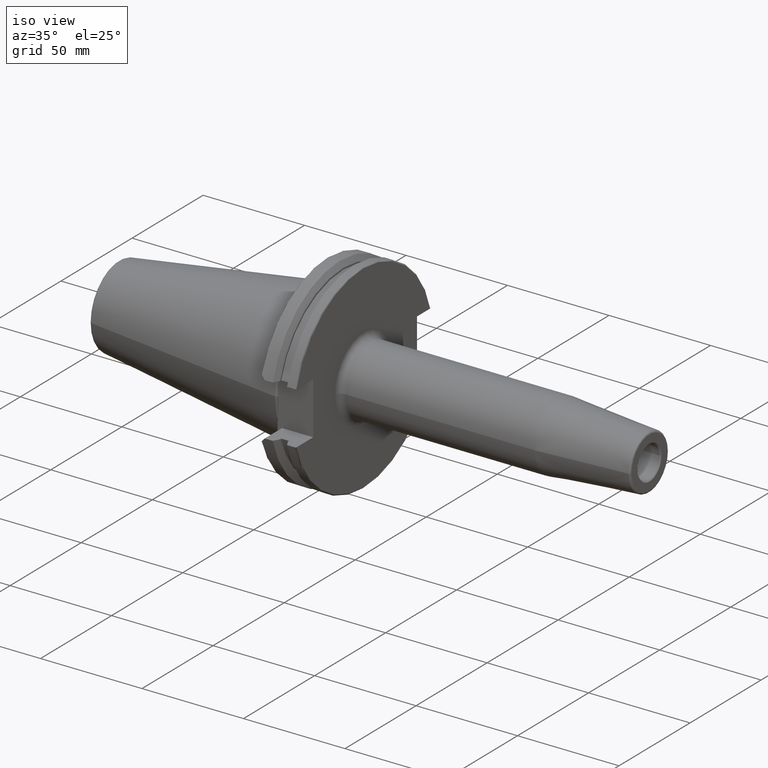
[diagram: clean part render]
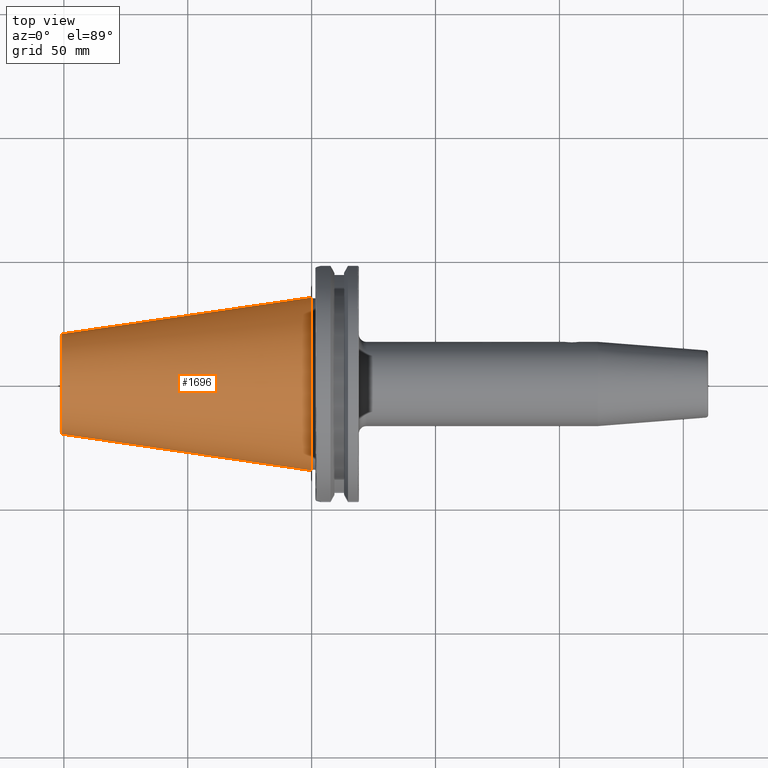
[diagram: tour spotlight — one face highlighted and labeled with its STEP entity id]
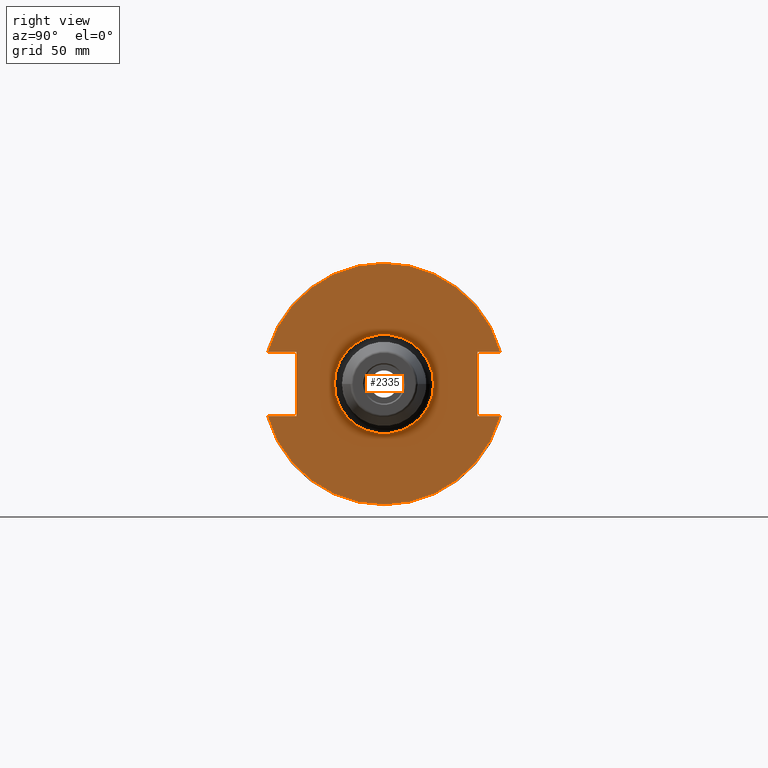
[diagram: tour spotlight — one face highlighted and labeled with its STEP entity id]
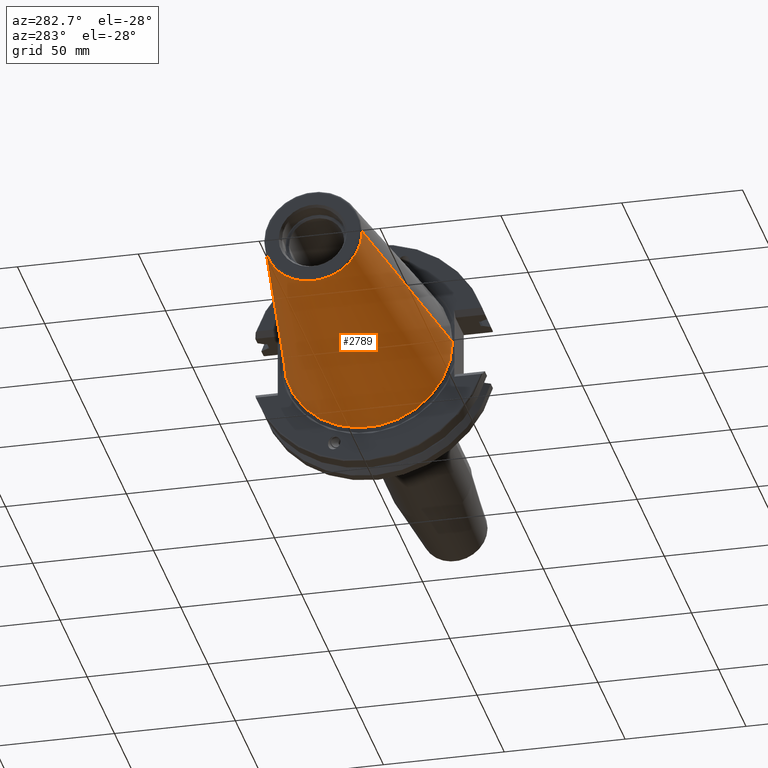
[diagram: tour spotlight — one face highlighted and labeled with its STEP entity id]
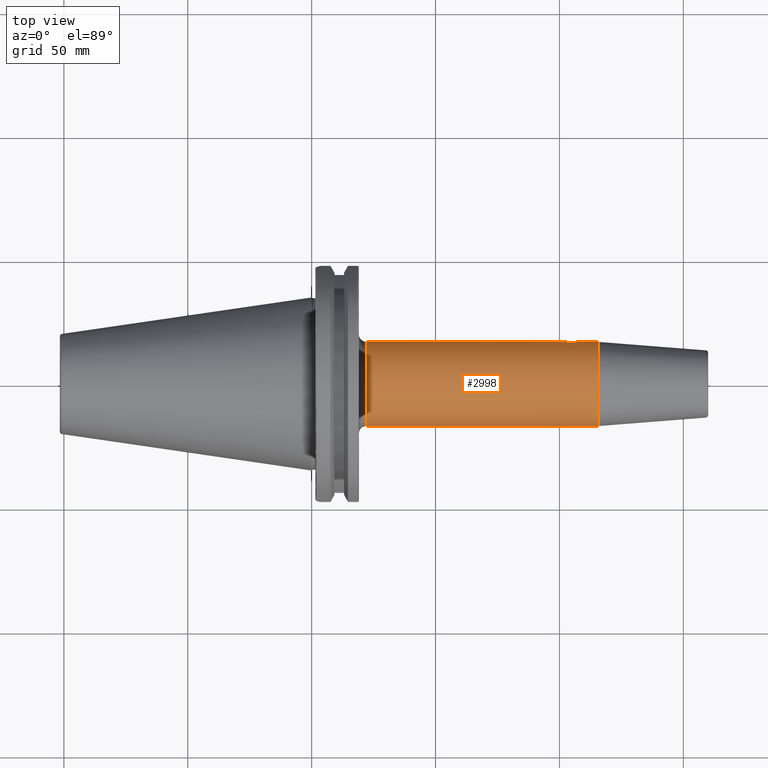
[diagram: tour spotlight — one face highlighted and labeled with its STEP entity id]
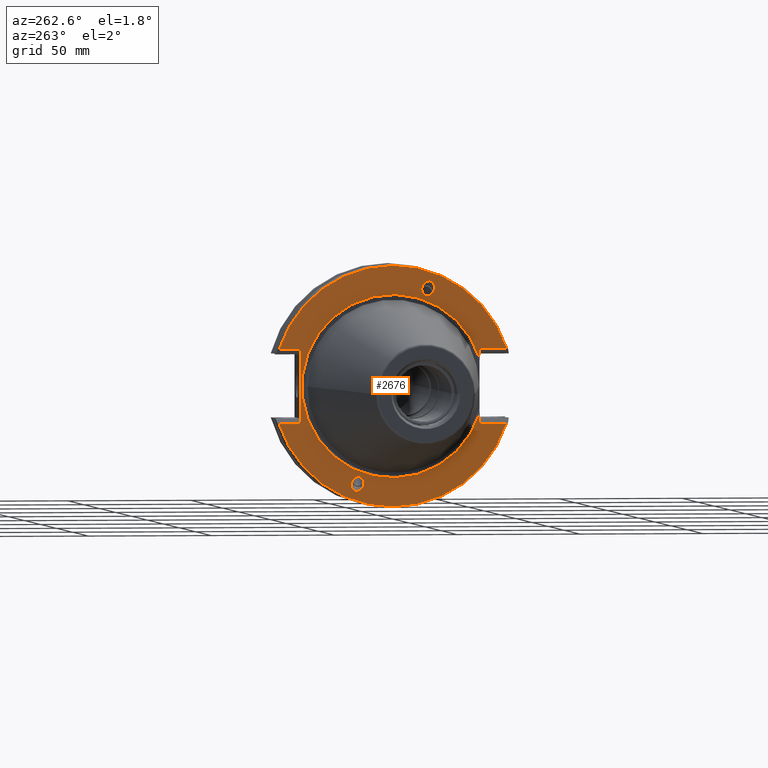
[diagram: tour spotlight — one face highlighted and labeled with its STEP entity id]
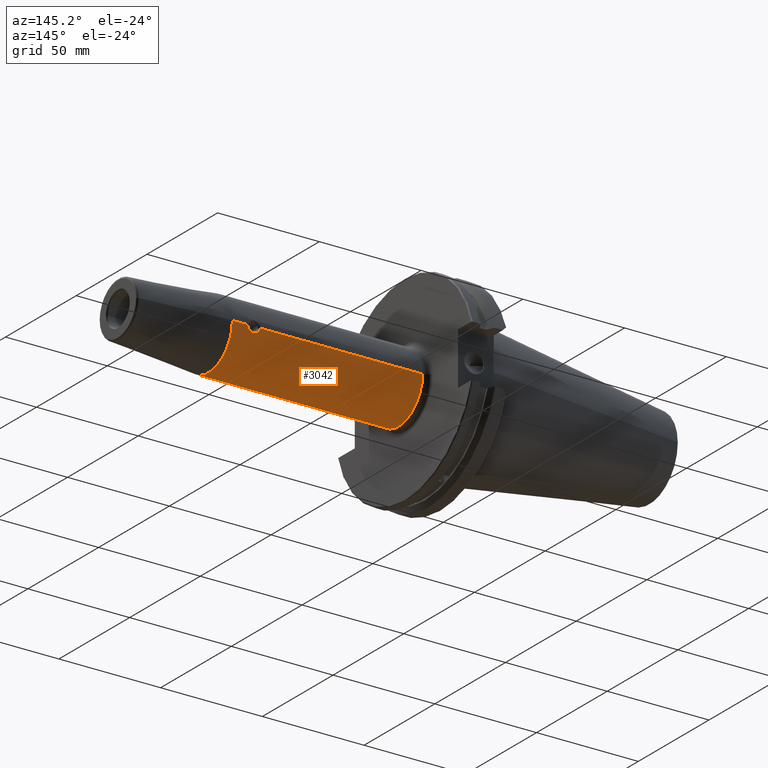
[diagram: tour spotlight — one face highlighted and labeled with its STEP entity id]
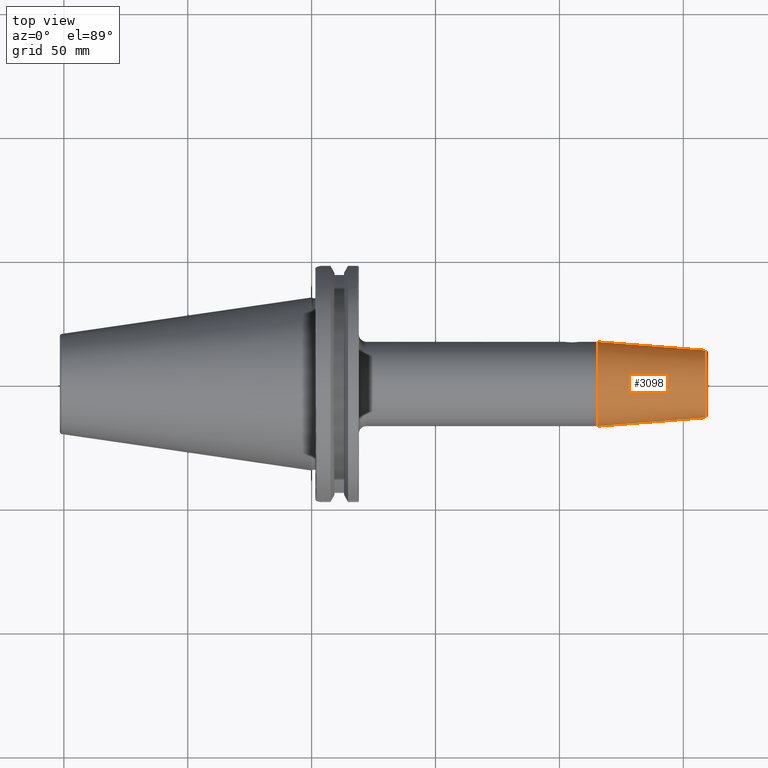
[diagram: tour spotlight — one face highlighted and labeled with its STEP entity id]
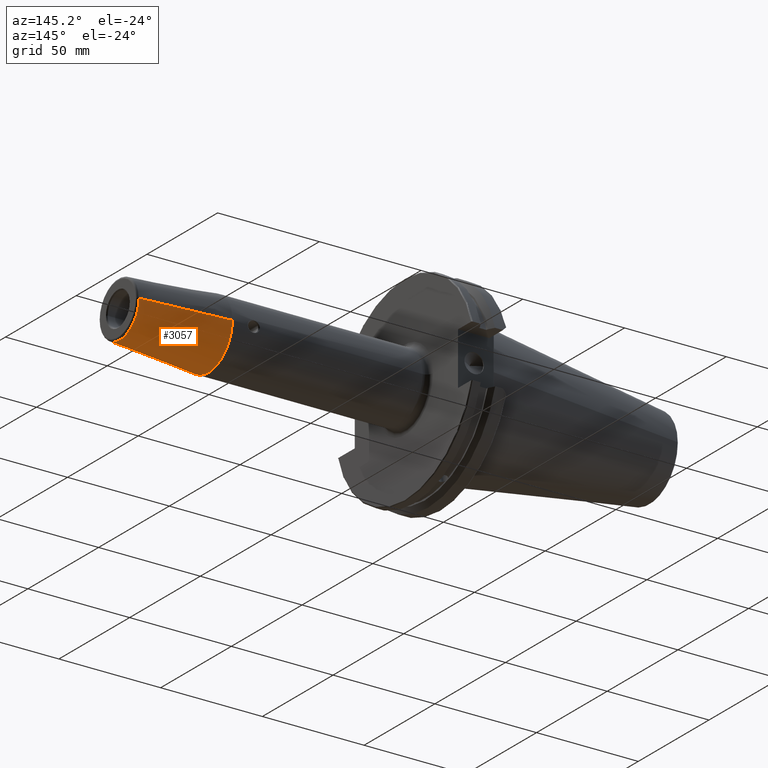
[diagram: tour spotlight — one face highlighted and labeled with its STEP entity id]
A machine part: a face-by-face anatomy tour. The part has 132 B-rep faces; the first image is the clean iso view, then the 8 largest visible faces are spotlighted one at a time (largest first), each with its STEP entity span.

Face 1 — top view, entity #1696. In plain terms, the highlighted conical surface has half-angle 8.297 deg.
Definition (entity closure, byte-faithful):
#2=CARTESIAN_POINT('',(-1.007443068839E2,0.E0,0.E0));
#3=DIRECTION('',(-1.E0,0.E0,0.E0));
#4=DIRECTION('',(0.E0,-1.E0,0.E0));
#5=AXIS2_PLACEMENT_3D('',#2,#3,#4);
#7=CARTESIAN_POINT('',(-5.684341886081E-14,0.E0,0.E0));
#8=DIRECTION('',(1.E0,0.E0,0.E0));
#9=DIRECTION('',(0.E0,1.E0,0.E0));
#10=AXIS2_PLACEMENT_3D('',#7,#8,#9);
#986=DIRECTION('',(-9.895329823977E-1,1.443068839211E-1,-1.858265596567E-14));
#987=VECTOR('',#986,1.018099534589E2);
#988=CARTESIAN_POINT('',(0.E0,-3.4925E1,0.E0));
#989=LINE('',#988,#987);
#995=DIRECTION('',(-9.895329823977E-1,-1.443068839211E-1,1.855830584851E-14));
#996=VECTOR('',#995,1.018099534589E2);
#997=CARTESIAN_POINT('',(0.E0,3.4925E1,0.E0));
#998=LINE('',#997,#996);
#1494=CARTESIAN_POINT('',(-5.684341886081E-14,3.4925E1,0.E0));
#1495=CARTESIAN_POINT('',(-5.684341886081E-14,-3.4925E1,0.E0));
#1496=VERTEX_POINT('',#1494);
#1497=VERTEX_POINT('',#1495);
#1556=CARTESIAN_POINT('',(-1.007443068839E2,-2.023312286420E1,0.E0));
#1557=CARTESIAN_POINT('',(-1.007443068839E2,2.023312286420E1,0.E0));
#1558=VERTEX_POINT('',#1556);
#1559=VERTEX_POINT('',#1557);
#1681=CARTESIAN_POINT('',(-5.037215344196E1,0.E0,0.E0));
#1682=DIRECTION('',(1.E0,0.E0,0.E0));
#1683=DIRECTION('',(0.E0,-1.E0,0.E0));
#1684=AXIS2_PLACEMENT_3D('',#1681,#1682,#1683);
#1685=CONICAL_SURFACE('',#1684,2.757906143210E1,8.29714444E0);
#1687=ORIENTED_EDGE('',*,*,#1686,.T.);
#1689=ORIENTED_EDGE('',*,*,#1688,.F.);
#1691=ORIENTED_EDGE('',*,*,#1690,.T.);
#1693=ORIENTED_EDGE('',*,*,#1692,.T.);
#1694=EDGE_LOOP('',(#1687,#1689,#1691,#1693));
#1695=FACE_OUTER_BOUND('',#1694,.F.);
#1696=ADVANCED_FACE('',(#1695),#1685,.T.);
#6=CIRCLE('',#5,2.023312286420E1);
#11=CIRCLE('',#10,3.4925E1);
#1686=EDGE_CURVE('',#1558,#1559,#6,.T.);
#1688=EDGE_CURVE('',#1496,#1559,#998,.T.);
#1690=EDGE_CURVE('',#1496,#1497,#11,.T.);
#1692=EDGE_CURVE('',#1497,#1558,#989,.T.);

Face 2 — right view, entity #2335. In plain terms, the highlighted planar face has unit normal (1, 0, 0).
Definition (entity closure, byte-faithful):
#393=CARTESIAN_POINT('',(1.905E1,-4.695961196869E1,1.295E1));
#410=CARTESIAN_POINT('',(1.905E1,0.E0,0.E0));
#411=DIRECTION('',(1.E0,0.E0,0.E0));
#412=DIRECTION('',(0.E0,9.640156421594E-1,2.658455221966E-1));
#413=AXIS2_PLACEMENT_3D('',#410,#411,#412);
#472=CARTESIAN_POINT('',(1.905E1,0.E0,0.E0));
#473=DIRECTION('',(1.E0,0.E0,0.E0));
#474=DIRECTION('',(0.E0,-9.640156421594E-1,-2.658455221966E-1));
#475=AXIS2_PLACEMENT_3D('',#472,#473,#474);
#483=CARTESIAN_POINT('',(1.905E1,-4.695961196869E1,-1.295E1));
#537=CARTESIAN_POINT('',(1.905E1,4.695961196869E1,-1.295E1));
#549=DIRECTION('',(0.E0,1.E0,0.E0));
#550=VECTOR('',#549,1.165361196869E1);
#551=CARTESIAN_POINT('',(1.905E1,-4.695961196869E1,-1.295E1));
#552=LINE('',#551,#550);
#553=DIRECTION('',(0.E0,0.E0,1.E0));
#554=VECTOR('',#553,2.59E1);
#555=CARTESIAN_POINT('',(1.905E1,-3.5306E1,-1.295E1));
#556=LINE('',#555,#554);
#557=DIRECTION('',(0.E0,1.E0,0.E0));
#558=VECTOR('',#557,1.165361196869E1);
#559=CARTESIAN_POINT('',(1.905E1,-4.695961196869E1,1.295E1));
#560=LINE('',#559,#558);
#561=DIRECTION('',(0.E0,-1.E0,0.E0));
#562=VECTOR('',#561,9.240611968691E0);
#563=CARTESIAN_POINT('',(1.905E1,4.695961196869E1,1.295E1));
#564=LINE('',#563,#562);
#565=DIRECTION('',(0.E0,0.E0,-1.E0));
#566=VECTOR('',#565,2.59E1);
#567=CARTESIAN_POINT('',(1.905E1,3.7719E1,1.295E1));
#568=LINE('',#567,#566);
#569=DIRECTION('',(0.E0,-1.E0,0.E0));
#570=VECTOR('',#569,9.240611968691E0);
#571=CARTESIAN_POINT('',(1.905E1,4.695961196869E1,-1.295E1));
#572=LINE('',#571,#570);
#573=CARTESIAN_POINT('',(1.905E1,0.E0,0.E0));
#574=DIRECTION('',(1.E0,0.E0,0.E0));
#575=DIRECTION('',(0.E0,-1.E0,0.E0));
#576=AXIS2_PLACEMENT_3D('',#573,#574,#575);
#578=CARTESIAN_POINT('',(1.905E1,0.E0,0.E0));
#579=DIRECTION('',(1.E0,0.E0,0.E0));
#580=DIRECTION('',(0.E0,1.E0,0.E0));
#581=AXIS2_PLACEMENT_3D('',#578,#579,#580);
#689=CARTESIAN_POINT('',(1.905E1,4.695961196869E1,1.295E1));
#1403=CARTESIAN_POINT('',(1.905E1,3.7719E1,1.295E1));
#1404=CARTESIAN_POINT('',(1.905E1,3.7719E1,-1.295E1));
#1405=VERTEX_POINT('',#1403);
#1406=VERTEX_POINT('',#1404);
#1426=CARTESIAN_POINT('',(1.905E1,-3.5306E1,-1.295E1));
#1427=CARTESIAN_POINT('',(1.905E1,-3.5306E1,1.295E1));
#1428=VERTEX_POINT('',#1426);
#1429=VERTEX_POINT('',#1427);
#1537=VERTEX_POINT('',#483);
#1538=VERTEX_POINT('',#537);
#1549=VERTEX_POINT('',#689);
#1550=VERTEX_POINT('',#393);
#1617=CARTESIAN_POINT('',(1.905E1,-2.E1,-2.266215559059E-14));
#1618=CARTESIAN_POINT('',(1.905E1,2.E1,1.133107779530E-14));
#1619=VERTEX_POINT('',#1617);
#1620=VERTEX_POINT('',#1618);
#2311=CARTESIAN_POINT('',(1.905E1,0.E0,0.E0));
#2312=DIRECTION('',(1.E0,0.E0,0.E0));
#2313=DIRECTION('',(0.E0,-1.E0,0.E0));
#2314=AXIS2_PLACEMENT_3D('',#2311,#2312,#2313);
#2315=PLANE('',#2314);
#2316=ORIENTED_EDGE('',*,*,#2225,.F.);
#2317=ORIENTED_EDGE('',*,*,#2253,.T.);
#2319=ORIENTED_EDGE('',*,*,#2318,.T.);
#2320=ORIENTED_EDGE('',*,*,#2111,.F.);
#2321=ORIENTED_EDGE('',*,*,#2142,.F.);
#2323=ORIENTED_EDGE('',*,*,#2322,.T.);
#2325=ORIENTED_EDGE('',*,*,#2324,.T.);
#2326=ORIENTED_EDGE('',*,*,#2292,.F.);
#2327=EDGE_LOOP('',(#2316,#2317,#2319,#2320,#2321,#2323,#2325,#2326));
#2328=FACE_OUTER_BOUND('',#2327,.F.);
#2330=ORIENTED_EDGE('',*,*,#2329,.T.);
#2332=ORIENTED_EDGE('',*,*,#2331,.T.);
#2333=EDGE_LOOP('',(#2330,#2332));
#2334=FACE_BOUND('',#2333,.F.);
#2335=ADVANCED_FACE('',(#2328,#2334),#2315,.T.);
#414=CIRCLE('',#413,4.87125E1);
#476=CIRCLE('',#475,4.87125E1);
#577=CIRCLE('',#576,2.E1);
#582=CIRCLE('',#581,2.E1);
#2111=EDGE_CURVE('',#1550,#1429,#560,.T.);
#2142=EDGE_CURVE('',#1549,#1550,#414,.T.);
#2225=EDGE_CURVE('',#1537,#1538,#476,.T.);
#2253=EDGE_CURVE('',#1537,#1428,#552,.T.);
#2292=EDGE_CURVE('',#1538,#1406,#572,.T.);
#2318=EDGE_CURVE('',#1428,#1429,#556,.T.);
#2322=EDGE_CURVE('',#1549,#1405,#564,.T.);
#2324=EDGE_CURVE('',#1405,#1406,#568,.T.);
#2329=EDGE_CURVE('',#1619,#1620,#577,.T.);
#2331=EDGE_CURVE('',#1620,#1619,#582,.T.);

Face 3 — auxiliary view, entity #2789. In plain terms, the highlighted conical surface has half-angle 8.297 deg.
Definition (entity closure, byte-faithful):
#981=CARTESIAN_POINT('',(-1.007443068839E2,0.E0,0.E0));
#982=DIRECTION('',(-1.E0,0.E0,0.E0));
#983=DIRECTION('',(0.E0,1.E0,0.E0));
#984=AXIS2_PLACEMENT_3D('',#981,#982,#983);
#986=DIRECTION('',(-9.895329823977E-1,1.443068839211E-1,-1.858265596567E-14));
#987=VECTOR('',#986,1.018099534589E2);
#988=CARTESIAN_POINT('',(0.E0,-3.4925E1,0.E0));
#989=LINE('',#988,#987);
#990=CARTESIAN_POINT('',(-5.684341886081E-14,0.E0,0.E0));
#991=DIRECTION('',(1.E0,0.E0,0.E0));
#992=DIRECTION('',(0.E0,-1.E0,0.E0));
#993=AXIS2_PLACEMENT_3D('',#990,#991,#992);
#995=DIRECTION('',(-9.895329823977E-1,-1.443068839211E-1,1.855830584851E-14));
#996=VECTOR('',#995,1.018099534589E2);
#997=CARTESIAN_POINT('',(0.E0,3.4925E1,0.E0));
#998=LINE('',#997,#996);
#1494=CARTESIAN_POINT('',(-5.684341886081E-14,3.4925E1,0.E0));
#1495=CARTESIAN_POINT('',(-5.684341886081E-14,-3.4925E1,0.E0));
#1496=VERTEX_POINT('',#1494);
#1497=VERTEX_POINT('',#1495);
#1556=CARTESIAN_POINT('',(-1.007443068839E2,-2.023312286420E1,0.E0));
#1557=CARTESIAN_POINT('',(-1.007443068839E2,2.023312286420E1,0.E0));
#1558=VERTEX_POINT('',#1556);
#1559=VERTEX_POINT('',#1557);
#2777=CARTESIAN_POINT('',(-5.037215344196E1,0.E0,0.E0));
#2778=DIRECTION('',(1.E0,0.E0,0.E0));
#2779=DIRECTION('',(0.E0,-1.E0,0.E0));
#2780=AXIS2_PLACEMENT_3D('',#2777,#2778,#2779);
#2781=CONICAL_SURFACE('',#2780,2.757906143210E1,8.29714444E0);
#2783=ORIENTED_EDGE('',*,*,#2782,.T.);
#2784=ORIENTED_EDGE('',*,*,#1692,.F.);
#2785=ORIENTED_EDGE('',*,*,#2767,.T.);
#2786=ORIENTED_EDGE('',*,*,#1688,.T.);
#2787=EDGE_LOOP('',(#2783,#2784,#2785,#2786));
#2788=FACE_OUTER_BOUND('',#2787,.F.);
#2789=ADVANCED_FACE('',(#2788),#2781,.T.);
#985=CIRCLE('',#984,2.023312286420E1);
#994=CIRCLE('',#993,3.4925E1);
#1688=EDGE_CURVE('',#1496,#1559,#998,.T.);
#1692=EDGE_CURVE('',#1497,#1558,#989,.T.);
#2767=EDGE_CURVE('',#1497,#1496,#994,.T.);
#2782=EDGE_CURVE('',#1559,#1558,#985,.T.);

Face 4 — top view, entity #2998. In plain terms, the highlighted cylindrical surface (partial cylindrical patch) has radius 17 mm, axis along (1, 0, 0).
Definition (entity closure, byte-faithful):
#1096=CARTESIAN_POINT('',(1.08E2,1.7E1,0.E0));
#1097=CARTESIAN_POINT('',(1.08E2,1.7E1,2.850482626653E-1));
#1098=CARTESIAN_POINT('',(1.079093340495E2,1.698608884534E1,8.310653203653E-1));
#1099=CARTESIAN_POINT('',(1.074988223454E2,1.692858404292E1,1.612132521097E0));
#1100=CARTESIAN_POINT('',(1.068401316183E2,1.685378474800E1,2.246289278647E0));
#1101=CARTESIAN_POINT('',(1.059793838090E2,1.678950842158E1,2.671828464848E0));
#1102=CARTESIAN_POINT('',(1.050029373905E2,1.676396127665E1,2.822101341521E0));
#1103=CARTESIAN_POINT('',(1.040291541766E2,1.678910908376E1,2.674216409574E0));
#1104=CARTESIAN_POINT('',(1.031668756960E2,1.685308656489E1,2.251413069835E0));
#1105=CARTESIAN_POINT('',(1.025049181779E2,1.692808879280E1,1.617322849884E0));
#1106=CARTESIAN_POINT('',(1.020920136005E2,1.698588375944E1,8.358791306053E-1));
#1107=CARTESIAN_POINT('',(1.02E2,1.7E1,2.869636948310E-1));
#1108=CARTESIAN_POINT('',(1.02E2,1.7E1,0.E0));
#1110=CARTESIAN_POINT('',(1.1553E2,0.E0,0.E0));
#1111=DIRECTION('',(1.E0,0.E0,0.E0));
#1112=DIRECTION('',(0.E0,1.E0,0.E0));
#1113=AXIS2_PLACEMENT_3D('',#1110,#1111,#1112);
#1115=CARTESIAN_POINT('',(2.205E1,0.E0,0.E0));
#1116=DIRECTION('',(1.E0,0.E0,0.E0));
#1117=DIRECTION('',(0.E0,1.E0,0.E0));
#1118=AXIS2_PLACEMENT_3D('',#1115,#1116,#1117);
#1152=DIRECTION('',(-1.E0,0.E0,1.213478955978E-11));
#1153=VECTOR('',#1152,7.995E1);
#1154=CARTESIAN_POINT('',(1.02E2,1.7E1,0.E0));
#1155=LINE('',#1154,#1153);
#1161=DIRECTION('',(-1.E0,0.E0,-1.037847458805E-11));
#1162=VECTOR('',#1161,9.348E1);
#1163=CARTESIAN_POINT('',(1.1553E2,-1.7E1,0.E0));
#1164=LINE('',#1163,#1162);
#1170=DIRECTION('',(-1.E0,0.E0,0.E0));
#1171=VECTOR('',#1170,7.53E0);
#1172=CARTESIAN_POINT('',(1.1553E2,1.7E1,0.E0));
#1173=LINE('',#1172,#1171);
#1609=CARTESIAN_POINT('',(1.1553E2,1.7E1,0.E0));
#1610=CARTESIAN_POINT('',(1.1553E2,-1.7E1,0.E0));
#1611=VERTEX_POINT('',#1609);
#1612=VERTEX_POINT('',#1610);
#1621=CARTESIAN_POINT('',(2.205E1,-1.7E1,0.E0));
#1622=CARTESIAN_POINT('',(2.205E1,1.7E1,0.E0));
#1623=VERTEX_POINT('',#1621);
#1624=VERTEX_POINT('',#1622);
#1679=VERTEX_POINT('',#1096);
#1680=VERTEX_POINT('',#1108);
#2980=CARTESIAN_POINT('',(1.20025E1,0.E0,0.E0));
#2981=DIRECTION('',(1.E0,0.E0,0.E0));
#2982=DIRECTION('',(0.E0,-1.E0,0.E0));
#2983=AXIS2_PLACEMENT_3D('',#2980,#2981,#2982);
#2984=CYLINDRICAL_SURFACE('',#2983,1.7E1);
#2986=ORIENTED_EDGE('',*,*,#2985,.F.);
#2988=ORIENTED_EDGE('',*,*,#2987,.F.);
#2990=ORIENTED_EDGE('',*,*,#2989,.T.);
#2992=ORIENTED_EDGE('',*,*,#2991,.T.);
#2993=ORIENTED_EDGE('',*,*,#2974,.F.);
#2995=ORIENTED_EDGE('',*,*,#2994,.F.);
#2996=EDGE_LOOP('',(#2986,#2988,#2990,#2992,#2993,#2995));
#2997=FACE_OUTER_BOUND('',#2996,.F.);
#2998=ADVANCED_FACE('',(#2997),#2984,.T.);
#1109=B_SPLINE_CURVE_WITH_KNOTS('',3,(#1096,#1097,#1098,#1099,#1100,#1101,#1102,
#1103,#1104,#1105,#1106,#1107,#1108),.UNSPECIFIED.,.F.,.F.,(4,1,1,1,1,1,1,1,1,1,
4),(0.E0,1.E-1,2.E-1,3.E-1,4.E-1,5.E-1,6.E-1,7.E-1,8.E-1,9.E-1,1.E0),
.UNSPECIFIED.);
#1114=CIRCLE('',#1113,1.7E1);
#1119=CIRCLE('',#1118,1.7E1);
#2974=EDGE_CURVE('',#1624,#1623,#1119,.T.);
#2985=EDGE_CURVE('',#1679,#1680,#1109,.T.);
#2987=EDGE_CURVE('',#1611,#1679,#1173,.T.);
#2989=EDGE_CURVE('',#1611,#1612,#1114,.T.);
#2991=EDGE_CURVE('',#1612,#1623,#1164,.T.);
#2994=EDGE_CURVE('',#1680,#1624,#1155,.T.);

Face 5 — auxiliary view, entity #2676. In plain terms, the highlighted planar face has unit normal (1, 0, 0).
Definition (entity closure, byte-faithful):
#587=DIRECTION('',(0.E0,0.E0,1.E0));
#588=VECTOR('',#587,4.082644218243E0);
#589=CARTESIAN_POINT('',(1.5E0,-3.5306E1,-1.515E1));
#590=LINE('',#589,#588);
#591=DIRECTION('',(0.E0,0.E0,1.E0));
#592=VECTOR('',#591,4.082644218243E0);
#593=CARTESIAN_POINT('',(1.5E0,-3.5306E1,1.106735578176E1));
#594=LINE('',#593,#592);
#599=CARTESIAN_POINT('',(1.5E0,-4.629670783382E1,-1.515E1));
#617=CARTESIAN_POINT('',(1.5E0,0.E0,0.E0));
#618=DIRECTION('',(-1.E0,0.E0,0.E0));
#619=DIRECTION('',(0.E0,9.504071405454E-1,-3.110084680523E-1));
#620=AXIS2_PLACEMENT_3D('',#617,#618,#619);
#629=CARTESIAN_POINT('',(1.5E0,4.629670783382E1,-1.515E1));
#649=DIRECTION('',(0.E0,0.E0,-1.E0));
#650=VECTOR('',#649,3.03E1);
#651=CARTESIAN_POINT('',(1.5E0,3.7719E1,1.515E1));
#652=LINE('',#651,#650);
#797=CARTESIAN_POINT('',(1.5E0,4.629670783382E1,1.515E1));
#815=CARTESIAN_POINT('',(1.5E0,0.E0,0.E0));
#816=DIRECTION('',(-1.E0,0.E0,0.E0));
#817=DIRECTION('',(0.E0,-9.504071405454E-1,3.110084680523E-1));
#818=AXIS2_PLACEMENT_3D('',#815,#816,#817);
#827=CARTESIAN_POINT('',(1.5E0,-4.629670783382E1,1.515E1));
#833=DIRECTION('',(0.E0,1.E0,0.E0));
#834=VECTOR('',#833,8.577707833819E0);
#835=CARTESIAN_POINT('',(1.5E0,3.7719E1,-1.515E1));
#836=LINE('',#835,#834);
#837=DIRECTION('',(0.E0,-1.E0,0.E0));
#838=VECTOR('',#837,8.577707833819E0);
#839=CARTESIAN_POINT('',(1.5E0,4.629670783382E1,1.515E1));
#840=LINE('',#839,#838);
#841=DIRECTION('',(0.E0,-1.E0,0.E0));
#842=VECTOR('',#841,1.099070783382E1);
#843=CARTESIAN_POINT('',(1.5E0,-3.5306E1,1.515E1));
#844=LINE('',#843,#842);
#845=DIRECTION('',(0.E0,1.E0,0.E0));
#846=VECTOR('',#845,1.099070783382E1);
#847=CARTESIAN_POINT('',(1.5E0,-4.629670783382E1,-1.515E1));
#848=LINE('',#847,#846);
#849=CARTESIAN_POINT('',(1.5E0,1.469393811491E1,-4.245972425107E1));
#850=CARTESIAN_POINT('',(1.5E0,1.499440431050E1,-4.245972425107E1));
#851=CARTESIAN_POINT('',(1.5E0,1.562938619636E1,-4.233131572402E1));
#852=CARTESIAN_POINT('',(1.5E0,1.646136743110E1,-4.164844651610E1));
#853=CARTESIAN_POINT('',(1.5E0,1.692722275148E1,-4.057411017513E1));
#854=CARTESIAN_POINT('',(1.5E0,1.696883601514E1,-3.946709007301E1));
#855=CARTESIAN_POINT('',(1.5E0,1.668375058402E1,-3.836006997088E1));
#856=CARTESIAN_POINT('',(1.5E0,1.598161139037E1,-3.728573362992E1));
#857=CARTESIAN_POINT('',(1.5E0,1.499944350064E1,-3.660286442200E1));
#858=CARTESIAN_POINT('',(1.5E0,1.433622012003E1,-3.647445589495E1));
#859=CARTESIAN_POINT('',(1.5E0,1.403575392444E1,-3.647445589495E1));
#861=CARTESIAN_POINT('',(1.5E0,1.403575392444E1,-3.647445589495E1));
#862=CARTESIAN_POINT('',(1.5E0,1.373528772886E1,-3.647445589495E1));
#863=CARTESIAN_POINT('',(1.5E0,1.310030584299E1,-3.660286442200E1));
#864=CARTESIAN_POINT('',(1.5E0,1.226832460826E1,-3.728573362992E1));
#865=CARTESIAN_POINT('',(1.5E0,1.180246928787E1,-3.836006997088E1));
#866=CARTESIAN_POINT('',(1.5E0,1.176085602421E1,-3.946709007301E1));
#867=CARTESIAN_POINT('',(1.5E0,1.204594145533E1,-4.057411017513E1));
#868=CARTESIAN_POINT('',(1.5E0,1.274808064899E1,-4.164844651610E1));
#869=CARTESIAN_POINT('',(1.5E0,1.373024853871E1,-4.233131572402E1));
#870=CARTESIAN_POINT('',(1.5E0,1.439347191933E1,-4.245972425107E1));
#871=CARTESIAN_POINT('',(1.5E0,1.469393811491E1,-4.245972425107E1));
#873=CARTESIAN_POINT('',(1.5E0,-1.603637501883E1,4.197111717666E1));
#874=CARTESIAN_POINT('',(1.5E0,-1.580620455935E1,4.216425312431E1));
#875=CARTESIAN_POINT('',(1.5E0,-1.523724080404E1,4.247404497433E1));
#876=CARTESIAN_POINT('',(1.5E0,-1.416096633651E1,4.248572404140E1));
#877=CARTESIAN_POINT('',(1.5E0,-1.311353036842E1,4.196218068521E1));
#878=CARTESIAN_POINT('',(1.5E0,-1.237007395372E1,4.114090257784E1));
#879=CARTESIAN_POINT('',(1.5E0,-1.187688325872E1,4.010962659736E1));
#880=CARTESIAN_POINT('',(1.5E0,-1.172418299771E1,3.883531083937E1));
#881=CARTESIAN_POINT('',(1.5E0,-1.203762738595E1,3.768087732712E1));
#882=CARTESIAN_POINT('',(1.5E0,-1.246314656105E1,3.715619891701E1));
#883=CARTESIAN_POINT('',(1.5E0,-1.269331702053E1,3.696306296936E1));
#885=CARTESIAN_POINT('',(1.5E0,-1.269331702053E1,3.696306296936E1));
#886=CARTESIAN_POINT('',(1.5E0,-1.292348748E1,3.676992702170E1));
#887=CARTESIAN_POINT('',(1.5E0,-1.349245123531E1,3.646013517169E1));
#888=CARTESIAN_POINT('',(1.5E0,-1.456872570285E1,3.644845610461E1));
#889=CARTESIAN_POINT('',(1.5E0,-1.561616167094E1,3.697199946080E1));
#890=CARTESIAN_POINT('',(1.5E0,-1.635961808564E1,3.779327756818E1));
#891=CARTESIAN_POINT('',(1.5E0,-1.685280878064E1,3.882455354866E1));
#892=CARTESIAN_POINT('',(1.5E0,-1.700550904165E1,4.009886930665E1));
#893=CARTESIAN_POINT('',(1.5E0,-1.669206465340E1,4.125330281890E1));
#894=CARTESIAN_POINT('',(1.5E0,-1.626654547830E1,4.177798122901E1));
#895=CARTESIAN_POINT('',(1.5E0,-1.603637501883E1,4.197111717666E1));
#907=CARTESIAN_POINT('',(1.5E0,-3.5306E1,-1.106735578176E1));
#909=CARTESIAN_POINT('',(1.5E0,0.E0,0.E0));
#910=DIRECTION('',(1.E0,0.E0,0.E0));
#911=DIRECTION('',(0.E0,-9.542162162162E-1,-2.991177238313E-1));
#912=AXIS2_PLACEMENT_3D('',#909,#910,#911);
#914=CARTESIAN_POINT('',(1.5E0,-3.5306E1,1.106735578176E1));
#1502=VERTEX_POINT('',#914);
#1503=VERTEX_POINT('',#907);
#1528=CARTESIAN_POINT('',(1.5E0,3.7719E1,-1.515E1));
#1529=VERTEX_POINT('',#1528);
#1530=CARTESIAN_POINT('',(1.5E0,3.7719E1,1.515E1));
#1531=VERTEX_POINT('',#1530);
#1532=CARTESIAN_POINT('',(1.5E0,-3.5306E1,1.515E1));
#1533=VERTEX_POINT('',#1532);
#1534=CARTESIAN_POINT('',(1.5E0,-3.5306E1,-1.515E1));
#1535=VERTEX_POINT('',#1534);
#1541=VERTEX_POINT('',#629);
#1542=VERTEX_POINT('',#599);
#1545=VERTEX_POINT('',#827);
#1546=VERTEX_POINT('',#797);
#1574=VERTEX_POINT('',#849);
#1575=VERTEX_POINT('',#859);
#1595=CARTESIAN_POINT('',(1.5E0,-1.603637501883E1,4.197111717666E1));
#1596=VERTEX_POINT('',#1595);
#1597=CARTESIAN_POINT('',(1.5E0,-1.269331702053E1,3.696306296936E1));
#1598=VERTEX_POINT('',#1597);
#2646=CARTESIAN_POINT('',(1.5E0,0.E0,0.E0));
#2647=DIRECTION('',(1.E0,0.E0,0.E0));
#2648=DIRECTION('',(0.E0,-1.E0,0.E0));
#2649=AXIS2_PLACEMENT_3D('',#2646,#2647,#2648);
#2650=PLANE('',#2649);
#2651=ORIENTED_EDGE('',*,*,#2384,.F.);
#2652=ORIENTED_EDGE('',*,*,#2400,.F.);
#2653=ORIENTED_EDGE('',*,*,#2414,.F.);
#2654=ORIENTED_EDGE('',*,*,#2610,.F.);
#2655=ORIENTED_EDGE('',*,*,#2626,.F.);
#2656=ORIENTED_EDGE('',*,*,#2641,.F.);
#2657=ORIENTED_EDGE('',*,*,#2352,.F.);
#2659=ORIENTED_EDGE('',*,*,#2658,.F.);
#2660=ORIENTED_EDGE('',*,*,#2344,.F.);
#2661=ORIENTED_EDGE('',*,*,#2368,.F.);
#2662=EDGE_LOOP('',(#2651,#2652,#2653,#2654,#2655,#2656,#2657,#2659,#2660,
#2661));
#2663=FACE_OUTER_BOUND('',#2662,.F.);
#2665=ORIENTED_EDGE('',*,*,#2664,.F.);
#2667=ORIENTED_EDGE('',*,*,#2666,.F.);
#2668=EDGE_LOOP('',(#2665,#2667));
#2669=FACE_BOUND('',#2668,.F.);
#2671=ORIENTED_EDGE('',*,*,#2670,.T.);
#2673=ORIENTED_EDGE('',*,*,#2672,.T.);
#2674=EDGE_LOOP('',(#2671,#2673));
#2675=FACE_BOUND('',#2674,.F.);
#2676=ADVANCED_FACE('',(#2663,#2669,#2675),#2650,.F.);
#621=CIRCLE('',#620,4.87125E1);
#819=CIRCLE('',#818,4.87125E1);
#860=B_SPLINE_CURVE_WITH_KNOTS('',3,(#849,#850,#851,#852,#853,#854,#855,#856,
#857,#858,#859),.UNSPECIFIED.,.F.,.F.,(4,1,1,1,1,1,1,1,4),(0.E0,1.25E-1,2.5E-1,
3.75E-1,5.E-1,6.25E-1,7.5E-1,8.75E-1,1.E0),.UNSPECIFIED.);
#872=B_SPLINE_CURVE_WITH_KNOTS('',3,(#861,#862,#863,#864,#865,#866,#867,#868,
#869,#870,#871),.UNSPECIFIED.,.F.,.F.,(4,1,1,1,1,1,1,1,4),(0.E0,1.25E-1,2.5E-1,
3.75E-1,5.E-1,6.25E-1,7.5E-1,8.75E-1,1.E0),.UNSPECIFIED.);
#884=B_SPLINE_CURVE_WITH_KNOTS('',3,(#873,#874,#875,#876,#877,#878,#879,#880,
#881,#882,#883),.UNSPECIFIED.,.F.,.F.,(4,1,1,1,1,1,1,1,4),(0.E0,1.25E-1,2.5E-1,
3.75E-1,5.E-1,6.25E-1,7.5E-1,8.75E-1,1.E0),.UNSPECIFIED.);
#896=B_SPLINE_CURVE_WITH_KNOTS('',3,(#885,#886,#887,#888,#889,#890,#891,#892,
#893,#894,#895),.UNSPECIFIED.,.F.,.F.,(4,1,1,1,1,1,1,1,4),(0.E0,1.25E-1,2.5E-1,
3.75E-1,5.E-1,6.25E-1,7.5E-1,8.75E-1,1.E0),.UNSPECIFIED.);
#913=CIRCLE('',#912,3.7E1);
#2344=EDGE_CURVE('',#1535,#1503,#590,.T.);
#2352=EDGE_CURVE('',#1502,#1533,#594,.T.);
#2368=EDGE_CURVE('',#1542,#1535,#848,.T.);
#2384=EDGE_CURVE('',#1541,#1542,#621,.T.);
#2400=EDGE_CURVE('',#1529,#1541,#836,.T.);
#2414=EDGE_CURVE('',#1531,#1529,#652,.T.);
#2610=EDGE_CURVE('',#1546,#1531,#840,.T.);
#2626=EDGE_CURVE('',#1545,#1546,#819,.T.);
#2641=EDGE_CURVE('',#1533,#1545,#844,.T.);
#2658=EDGE_CURVE('',#1503,#1502,#913,.T.);
#2664=EDGE_CURVE('',#1574,#1575,#860,.T.);
#2666=EDGE_CURVE('',#1575,#1574,#872,.T.);
#2670=EDGE_CURVE('',#1596,#1598,#884,.T.);
#2672=EDGE_CURVE('',#1598,#1596,#896,.T.);

Face 6 — auxiliary view, entity #3042. In plain terms, the highlighted cylindrical surface (partial cylindrical patch) has radius 17 mm, axis along (1, 0, 0).
Definition (entity closure, byte-faithful):
#1096=CARTESIAN_POINT('',(1.08E2,1.7E1,0.E0));
#1108=CARTESIAN_POINT('',(1.02E2,1.7E1,0.E0));
#1138=CARTESIAN_POINT('',(1.02E2,1.7E1,0.E0));
#1139=CARTESIAN_POINT('',(1.02E2,1.7E1,-2.849117515449E-1));
#1140=CARTESIAN_POINT('',(1.020906838757E2,1.698609072910E1,
-8.307342052479E-1));
#1141=CARTESIAN_POINT('',(1.025002282217E2,1.692870466369E1,-1.610876375413E0));
#1142=CARTESIAN_POINT('',(1.031594433994E2,1.685382097530E1,-2.246093358654E0));
#1143=CARTESIAN_POINT('',(1.040201438844E2,1.678952902276E1,-2.671687302458E0));
#1144=CARTESIAN_POINT('',(1.049972299403E2,1.676394787173E1,-2.822188848543E0));
#1145=CARTESIAN_POINT('',(1.059715784921E2,1.678914194514E1,-2.674008494597E0));
#1146=CARTESIAN_POINT('',(1.068339381049E2,1.685315872910E1,-2.250941756998E0));
#1147=CARTESIAN_POINT('',(1.074962735858E2,1.692824034693E1,-1.615817649258E0));
#1148=CARTESIAN_POINT('',(1.079082914181E2,1.698593303110E1,
-8.346358197199E-1));
#1149=CARTESIAN_POINT('',(1.08E2,1.7E1,-2.864404424738E-1));
#1150=CARTESIAN_POINT('',(1.08E2,1.7E1,0.E0));
#1152=DIRECTION('',(-1.E0,0.E0,1.213478955978E-11));
#1153=VECTOR('',#1152,7.995E1);
#1154=CARTESIAN_POINT('',(1.02E2,1.7E1,0.E0));
#1155=LINE('',#1154,#1153);
#1156=CARTESIAN_POINT('',(2.205E1,0.E0,0.E0));
#1157=DIRECTION('',(1.E0,0.E0,0.E0));
#1158=DIRECTION('',(0.E0,-1.E0,0.E0));
#1159=AXIS2_PLACEMENT_3D('',#1156,#1157,#1158);
#1161=DIRECTION('',(-1.E0,0.E0,-1.037847458805E-11));
#1162=VECTOR('',#1161,9.348E1);
#1163=CARTESIAN_POINT('',(1.1553E2,-1.7E1,0.E0));
#1164=LINE('',#1163,#1162);
#1165=CARTESIAN_POINT('',(1.1553E2,0.E0,0.E0));
#1166=DIRECTION('',(-1.E0,0.E0,0.E0));
#1167=DIRECTION('',(0.E0,1.E0,0.E0));
#1168=AXIS2_PLACEMENT_3D('',#1165,#1166,#1167);
#1170=DIRECTION('',(-1.E0,0.E0,0.E0));
#1171=VECTOR('',#1170,7.53E0);
#1172=CARTESIAN_POINT('',(1.1553E2,1.7E1,0.E0));
#1173=LINE('',#1172,#1171);
#1609=CARTESIAN_POINT('',(1.1553E2,1.7E1,0.E0));
#1610=CARTESIAN_POINT('',(1.1553E2,-1.7E1,0.E0));
#1611=VERTEX_POINT('',#1609);
#1612=VERTEX_POINT('',#1610);
#1621=CARTESIAN_POINT('',(2.205E1,-1.7E1,0.E0));
#1622=CARTESIAN_POINT('',(2.205E1,1.7E1,0.E0));
#1623=VERTEX_POINT('',#1621);
#1624=VERTEX_POINT('',#1622);
#1679=VERTEX_POINT('',#1096);
#1680=VERTEX_POINT('',#1108);
#3028=CARTESIAN_POINT('',(1.20025E1,0.E0,0.E0));
#3029=DIRECTION('',(1.E0,0.E0,0.E0));
#3030=DIRECTION('',(0.E0,-1.E0,0.E0));
#3031=AXIS2_PLACEMENT_3D('',#3028,#3029,#3030);
#3032=CYLINDRICAL_SURFACE('',#3031,1.7E1);
#3033=ORIENTED_EDGE('',*,*,#3019,.F.);
#3034=ORIENTED_EDGE('',*,*,#2994,.T.);
#3035=ORIENTED_EDGE('',*,*,#2960,.F.);
#3036=ORIENTED_EDGE('',*,*,#2991,.F.);
#3038=ORIENTED_EDGE('',*,*,#3037,.F.);
#3039=ORIENTED_EDGE('',*,*,#2987,.T.);
#3040=EDGE_LOOP('',(#3033,#3034,#3035,#3036,#3038,#3039));
#3041=FACE_OUTER_BOUND('',#3040,.F.);
#3042=ADVANCED_FACE('',(#3041),#3032,.T.);
#1151=B_SPLINE_CURVE_WITH_KNOTS('',3,(#1138,#1139,#1140,#1141,#1142,#1143,#1144,
#1145,#1146,#1147,#1148,#1149,#1150),.UNSPECIFIED.,.F.,.F.,(4,1,1,1,1,1,1,1,1,1,
4),(0.E0,1.E-1,2.E-1,3.E-1,4.E-1,5.E-1,6.E-1,7.E-1,8.E-1,9.E-1,1.E0),
.UNSPECIFIED.);
#1160=CIRCLE('',#1159,1.7E1);
#1169=CIRCLE('',#1168,1.7E1);
#2960=EDGE_CURVE('',#1623,#1624,#1160,.T.);
#2987=EDGE_CURVE('',#1611,#1679,#1173,.T.);
#2991=EDGE_CURVE('',#1612,#1623,#1164,.T.);
#2994=EDGE_CURVE('',#1680,#1624,#1155,.T.);
#3019=EDGE_CURVE('',#1680,#1679,#1151,.T.);
#3037=EDGE_CURVE('',#1611,#1612,#1169,.T.);

Face 7 — top view, entity #3098. In plain terms, the highlighted conical surface has half-angle 4.5 deg.
Definition (entity closure, byte-faithful):
#1110=CARTESIAN_POINT('',(1.1553E2,0.E0,0.E0));
#1111=DIRECTION('',(1.E0,0.E0,0.E0));
#1112=DIRECTION('',(0.E0,1.E0,0.E0));
#1113=AXIS2_PLACEMENT_3D('',#1110,#1111,#1112);
#1179=DIRECTION('',(-9.969170968413E-1,7.846210566550E-2,8.708311274304E-12));
#1180=VECTOR('',#1179,4.368313297443E1);
#1181=CARTESIAN_POINT('',(1.590784621058E2,1.357252940476E1,
-3.804042374786E-10));
#1182=LINE('',#1181,#1180);
#1183=DIRECTION('',(-9.969170968413E-1,-7.846210566550E-2,-8.708232822540E-12));
#1184=VECTOR('',#1183,4.368313297443E1);
#1185=CARTESIAN_POINT('',(1.590784621058E2,-1.357252940476E1,
3.804008104597E-10));
#1186=LINE('',#1185,#1184);
#1197=CARTESIAN_POINT('',(1.590784621057E2,0.E0,0.E0));
#1198=DIRECTION('',(-1.E0,0.E0,0.E0));
#1199=DIRECTION('',(0.E0,-1.E0,0.E0));
#1200=AXIS2_PLACEMENT_3D('',#1197,#1198,#1199);
#1609=CARTESIAN_POINT('',(1.1553E2,1.7E1,0.E0));
#1610=CARTESIAN_POINT('',(1.1553E2,-1.7E1,0.E0));
#1611=VERTEX_POINT('',#1609);
#1612=VERTEX_POINT('',#1610);
#1641=CARTESIAN_POINT('',(1.590784621057E2,-1.357252940477E1,0.E0));
#1642=CARTESIAN_POINT('',(1.590784621057E2,1.357252940477E1,0.E0));
#1643=VERTEX_POINT('',#1641);
#1644=VERTEX_POINT('',#1642);
#3087=CARTESIAN_POINT('',(1.373042310528E2,0.E0,0.E0));
#3088=DIRECTION('',(-1.E0,0.E0,0.E0));
#3089=DIRECTION('',(0.E0,1.E0,0.E0));
#3090=AXIS2_PLACEMENT_3D('',#3087,#3088,#3089);
#3091=CONICAL_SURFACE('',#3090,1.528626470239E1,4.500172990015E0);
#3092=ORIENTED_EDGE('',*,*,#3078,.F.);
#3093=ORIENTED_EDGE('',*,*,#3053,.T.);
#3094=ORIENTED_EDGE('',*,*,#2989,.F.);
#3095=ORIENTED_EDGE('',*,*,#3050,.F.);
#3096=EDGE_LOOP('',(#3092,#3093,#3094,#3095));
#3097=FACE_OUTER_BOUND('',#3096,.F.);
#3098=ADVANCED_FACE('',(#3097),#3091,.T.);
#1114=CIRCLE('',#1113,1.7E1);
#1201=CIRCLE('',#1200,1.357252940477E1);
#2989=EDGE_CURVE('',#1611,#1612,#1114,.T.);
#3050=EDGE_CURVE('',#1644,#1611,#1182,.T.);
#3053=EDGE_CURVE('',#1643,#1612,#1186,.T.);
#3078=EDGE_CURVE('',#1643,#1644,#1201,.T.);

Face 8 — auxiliary view, entity #3057. In plain terms, the highlighted conical surface has half-angle 4.5 deg.
Definition (entity closure, byte-faithful):
#1165=CARTESIAN_POINT('',(1.1553E2,0.E0,0.E0));
#1166=DIRECTION('',(-1.E0,0.E0,0.E0));
#1167=DIRECTION('',(0.E0,1.E0,0.E0));
#1168=AXIS2_PLACEMENT_3D('',#1165,#1166,#1167);
#1174=CARTESIAN_POINT('',(1.590784621057E2,0.E0,0.E0));
#1175=DIRECTION('',(-1.E0,0.E0,0.E0));
#1176=DIRECTION('',(0.E0,1.E0,0.E0));
#1177=AXIS2_PLACEMENT_3D('',#1174,#1175,#1176);
#1179=DIRECTION('',(-9.969170968413E-1,7.846210566550E-2,8.708311274304E-12));
#1180=VECTOR('',#1179,4.368313297443E1);
#1181=CARTESIAN_POINT('',(1.590784621058E2,1.357252940476E1,
-3.804042374786E-10));
#1182=LINE('',#1181,#1180);
#1183=DIRECTION('',(-9.969170968413E-1,-7.846210566550E-2,-8.708232822540E-12));
#1184=VECTOR('',#1183,4.368313297443E1);
#1185=CARTESIAN_POINT('',(1.590784621058E2,-1.357252940476E1,
3.804008104597E-10));
#1186=LINE('',#1185,#1184);
#1609=CARTESIAN_POINT('',(1.1553E2,1.7E1,0.E0));
#1610=CARTESIAN_POINT('',(1.1553E2,-1.7E1,0.E0));
#1611=VERTEX_POINT('',#1609);
#1612=VERTEX_POINT('',#1610);
#1641=CARTESIAN_POINT('',(1.590784621057E2,-1.357252940477E1,0.E0));
#1642=CARTESIAN_POINT('',(1.590784621057E2,1.357252940477E1,0.E0));
#1643=VERTEX_POINT('',#1641);
#1644=VERTEX_POINT('',#1642);
#3043=CARTESIAN_POINT('',(1.373042310528E2,0.E0,0.E0));
#3044=DIRECTION('',(-1.E0,0.E0,0.E0));
#3045=DIRECTION('',(0.E0,1.E0,0.E0));
#3046=AXIS2_PLACEMENT_3D('',#3043,#3044,#3045);
#3047=CONICAL_SURFACE('',#3046,1.528626470239E1,4.500172990015E0);
#3049=ORIENTED_EDGE('',*,*,#3048,.F.);
#3051=ORIENTED_EDGE('',*,*,#3050,.T.);
#3052=ORIENTED_EDGE('',*,*,#3037,.T.);
#3054=ORIENTED_EDGE('',*,*,#3053,.F.);
#3055=EDGE_LOOP('',(#3049,#3051,#3052,#3054));
#3056=FACE_OUTER_BOUND('',#3055,.F.);
#3057=ADVANCED_FACE('',(#3056),#3047,.T.);
#1169=CIRCLE('',#1168,1.7E1);
#1178=CIRCLE('',#1177,1.357252940477E1);
#3037=EDGE_CURVE('',#1611,#1612,#1169,.T.);
#3048=EDGE_CURVE('',#1644,#1643,#1178,.T.);
#3050=EDGE_CURVE('',#1644,#1611,#1182,.T.);
#3053=EDGE_CURVE('',#1643,#1612,#1186,.T.);